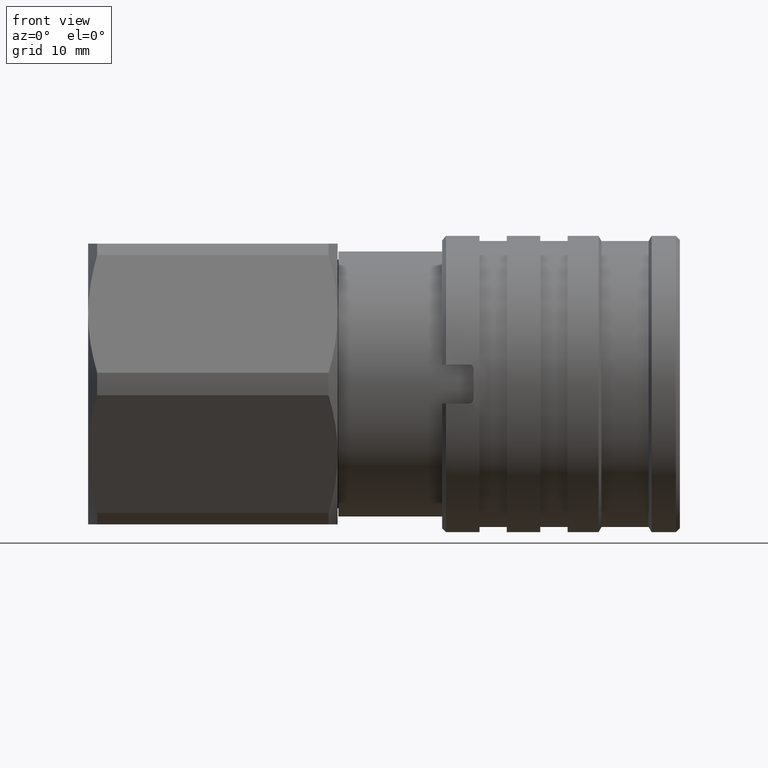
[diagram: clean part render]
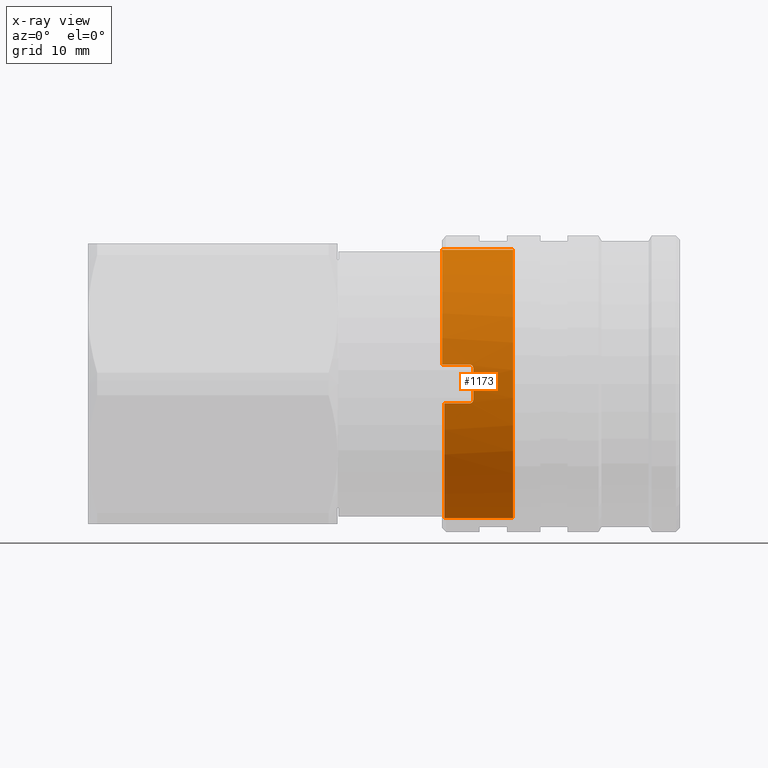
[diagram: x-ray — body ghosted, one internal face saturated and labeled with its STEP entity id]
A machine part, front view, then the same camera in x-ray: the body is ghosted and one INTERNAL B-rep face — a face not visible from any outside direction — is saturated and labeled: STEP entity #1173.
In plain terms, the highlighted cylindrical surface (partial cylindrical patch) has radius 17.2 mm, axis along (-1, -0, -0).
Its self-contained STEP definition (entity closure, byte-faithful):
#20 = CARTESIAN_POINT ( 'NONE',  ( 22.80000000000000100, -17.01734409360050600, -2.499999999999995600 ) ) ;
#53 = DIRECTION ( 'NONE',  ( -1.000000000000000000, -0.0000000000000000000, -0.0000000000000000000 ) ) ;
#188 = EDGE_LOOP ( 'NONE', ( #3934, #3924, #3922, #3920, #3957, #3958, #3959, #3970, #3971, #229 ) ) ;
#229 = ORIENTED_EDGE ( 'NONE', *, *, #948, .F. ) ;
#267 = FACE_OUTER_BOUND ( 'NONE', #188, .T. ) ;
#268 = CYLINDRICAL_SURFACE ( 'NONE', #1063, 17.19999999999999900 ) ;
#611 = CIRCLE ( 'NONE', #1948, 17.19999999999999900 ) ;
#624 = LINE ( 'NONE', #3706, #625 ) ;
#625 = VECTOR ( 'NONE', #3694, 1000.000000000000000 ) ;
#645 = LINE ( 'NONE', #20, #647 ) ;
#647 = VECTOR ( 'NONE', #53, 1000.000000000000000 ) ;
#684 = CIRCLE ( 'NONE', #4021, 17.19999999999999900 ) ;
#710 = LINE ( 'NONE', #4090, #712 ) ;
#712 = VECTOR ( 'NONE', #4089, 1000.000000000000000 ) ;
#821 = EDGE_CURVE ( 'NONE', #1664, #1632, #611, .T. ) ;
#829 = EDGE_CURVE ( 'NONE', #1688, #1664, #624, .T. ) ;
#849 = EDGE_CURVE ( 'NONE', #1821, #1632, #645, .T. ) ;
#876 = EDGE_CURVE ( 'NONE', #1737, #1688, #684, .T. ) ;
#901 = EDGE_CURVE ( 'NONE', #1921, #1834, #710, .T. ) ;
#916 = EDGE_CURVE ( 'NONE', #1834, #1635, #2154, .T. ) ;
#920 = EDGE_CURVE ( 'NONE', #1821, #1687, #2431, .T. ) ;
#948 = EDGE_CURVE ( 'NONE', #1737, #1635, #2186, .T. ) ;
#964 = EDGE_CURVE ( 'NONE', #1751, #1687, #2209, .T. ) ;
#973 = EDGE_CURVE ( 'NONE', #1751, #1921, #2502, .T. ) ;
#1010 = AXIS2_PLACEMENT_3D ( 'NONE', #1211, #1210, #1209 ) ;
#1063 = AXIS2_PLACEMENT_3D ( 'NONE', #2881, #2882, #2883 ) ;
#1173 = ADVANCED_FACE ( 'NONE', ( #267 ), #268, .F. ) ;
#1209 = DIRECTION ( 'NONE',  ( 0.0000000000000000000, 0.0000000000000000000, -1.000000000000000000 ) ) ;
#1210 = DIRECTION ( 'NONE',  ( 1.000000000000000000, 0.0000000000000000000, 0.0000000000000000000 ) ) ;
#1211 = CARTESIAN_POINT ( 'NONE',  ( 26.80000000000000100, 0.0000000000000000000, 0.0000000000000000000 ) ) ;
#1632 = VERTEX_POINT ( 'NONE', #2961 ) ;
#1635 = VERTEX_POINT ( 'NONE', #2963 ) ;
#1664 = VERTEX_POINT ( 'NONE', #2979 ) ;
#1687 = VERTEX_POINT ( 'NONE', #2992 ) ;
#1688 = VERTEX_POINT ( 'NONE', #2993 ) ;
#1737 = VERTEX_POINT ( 'NONE', #3025 ) ;
#1751 = VERTEX_POINT ( 'NONE', #3038 ) ;
#1821 = VERTEX_POINT ( 'NONE', #3081 ) ;
#1834 = VERTEX_POINT ( 'NONE', #3090 ) ;
#1921 = VERTEX_POINT ( 'NONE', #3135 ) ;
#1948 = AXIS2_PLACEMENT_3D ( 'NONE', #3690, #3688, #3656 ) ;
#2154 = CIRCLE ( 'NONE', #3915, 17.19999999999999900 ) ;
#2186 = LINE ( 'NONE', #3736, #2188 ) ;
#2188 = VECTOR ( 'NONE', #3734, 1000.000000000000000 ) ;
#2209 = CIRCLE ( 'NONE', #1010, 17.19999999999999900 ) ;
#2431 = B_SPLINE_CURVE_WITH_KNOTS ( 'NONE', 3,
 ( #3493, #3487, #3465, #3469, #3467, #3466 ),
 .UNSPECIFIED., .F., .F.,
 ( 4, 2, 4 ),
 ( 0.0000000000000000000, 0.0003921816289859521000, 0.0007843632579719042000 ),
 .UNSPECIFIED. ) ;
#2502 = B_SPLINE_CURVE_WITH_KNOTS ( 'NONE', 3,
 ( #2660, #2661, #2662, #2663, #2664, #2665 ),
 .UNSPECIFIED., .F., .F.,
 ( 4, 2, 4 ),
 ( 0.0000000000000000000, 0.0003921826131485966000, 0.0007843652262971932000 ),
 .UNSPECIFIED. ) ;
#2660 = CARTESIAN_POINT ( 'NONE',  ( 26.80000000000000100, -17.08332520325009800, 1.999999999999995800 ) ) ;
#2661 = CARTESIAN_POINT ( 'NONE',  ( 26.79999999999999700, -17.06790551899001300, 2.131709740373209300 ) ) ;
#2662 = CARTESIAN_POINT ( 'NONE',  ( 26.74631972666713200, -17.05108197392325700, 2.260376652877110100 ) ) ;
#2663 = CARTESIAN_POINT ( 'NONE',  ( 26.56235259974453200, -17.02556566590858000, 2.445161109243594300 ) ) ;
#2664 = CARTESIAN_POINT ( 'NONE',  ( 26.43263903549400600, -17.01734409360051000, 2.499999999999995600 ) ) ;
#2665 = CARTESIAN_POINT ( 'NONE',  ( 26.30000000000000100, -17.01734409360050600, 2.499999999999995600 ) ) ;
#2881 = CARTESIAN_POINT ( 'NONE',  ( 22.80000000000000100, 0.0000000000000000000, 0.0000000000000000000 ) ) ;
#2882 = DIRECTION ( 'NONE',  ( -1.000000000000000000, -0.0000000000000000000, -0.0000000000000000000 ) ) ;
#2883 = DIRECTION ( 'NONE',  ( 0.0000000000000000000, 0.0000000000000000000, 1.000000000000000000 ) ) ;
#2961 = CARTESIAN_POINT ( 'NONE',  ( 23.10000000000000100, -17.01734409360050600, -2.499999999999995600 ) ) ;
#2963 = CARTESIAN_POINT ( 'NONE',  ( 22.80000000000000100, 0.0000000000000000000, 17.19999999999999900 ) ) ;
#2979 = CARTESIAN_POINT ( 'NONE',  ( 23.10000000000000100, 2.106392494533447400E-015, -17.19999999999999900 ) ) ;
#2992 = CARTESIAN_POINT ( 'NONE',  ( 26.80000000000000100, -17.08332520325009800, -1.999999999999995800 ) ) ;
#2993 = CARTESIAN_POINT ( 'NONE',  ( 31.91671502080687600, 2.106392494533447400E-015, -17.19999999999999900 ) ) ;
#3025 = CARTESIAN_POINT ( 'NONE',  ( 31.91671502080687600, 0.0000000000000000000, 17.19999999999999900 ) ) ;
#3038 = CARTESIAN_POINT ( 'NONE',  ( 26.80000000000000100, -17.08332520325009800, 1.999999999999995800 ) ) ;
#3081 = CARTESIAN_POINT ( 'NONE',  ( 26.30000000000000100, -17.01734409360050600, -2.499999999999995600 ) ) ;
#3090 = CARTESIAN_POINT ( 'NONE',  ( 22.80000000000000100, -17.01734409360051000, 2.499999999999995600 ) ) ;
#3135 = CARTESIAN_POINT ( 'NONE',  ( 26.30000000000000100, -17.01734409360050600, 2.499999999999995600 ) ) ;
#3465 = CARTESIAN_POINT ( 'NONE',  ( 26.56210366188270200, -17.02554756240645200, -2.445282336775208800 ) ) ;
#3466 = CARTESIAN_POINT ( 'NONE',  ( 26.80000000000000100, -17.08332520325009800, -1.999999999999995800 ) ) ;
#3467 = CARTESIAN_POINT ( 'NONE',  ( 26.80000000000000400, -17.06790801662183600, -2.131688406444876400 ) ) ;
#3469 = CARTESIAN_POINT ( 'NONE',  ( 26.74607698487314900, -17.05103192512699200, -2.260748945506582300 ) ) ;
#3481 = CARTESIAN_POINT ( 'NONE',  ( 22.80000000000000100, 0.0000000000000000000, 0.0000000000000000000 ) ) ;
#3485 = DIRECTION ( 'NONE',  ( 0.0000000000000000000, 0.0000000000000000000, 1.000000000000000000 ) ) ;
#3486 = DIRECTION ( 'NONE',  ( -1.000000000000000000, -0.0000000000000000000, -0.0000000000000000000 ) ) ;
#3487 = CARTESIAN_POINT ( 'NONE',  ( 26.43261894833201700, -17.01734409360051000, -2.499999999999996000 ) ) ;
#3493 = CARTESIAN_POINT ( 'NONE',  ( 26.30000000000000100, -17.01734409360050600, -2.499999999999995600 ) ) ;
#3656 = DIRECTION ( 'NONE',  ( 0.0000000000000000000, 0.0000000000000000000, 1.000000000000000000 ) ) ;
#3688 = DIRECTION ( 'NONE',  ( -1.000000000000000000, -0.0000000000000000000, -0.0000000000000000000 ) ) ;
#3690 = CARTESIAN_POINT ( 'NONE',  ( 23.10000000000000100, 0.0000000000000000000, 0.0000000000000000000 ) ) ;
#3694 = DIRECTION ( 'NONE',  ( -1.000000000000000000, -0.0000000000000000000, -0.0000000000000000000 ) ) ;
#3706 = CARTESIAN_POINT ( 'NONE',  ( 22.80000000000000100, 2.106392494533447400E-015, -17.19999999999999900 ) ) ;
#3734 = DIRECTION ( 'NONE',  ( -1.000000000000000000, -0.0000000000000000000, -0.0000000000000000000 ) ) ;
#3736 = CARTESIAN_POINT ( 'NONE',  ( 22.80000000000000100, 0.0000000000000000000, 17.19999999999999900 ) ) ;
#3865 = DIRECTION ( 'NONE',  ( 1.000000000000000000, -1.172548684605769100E-016, 0.0000000000000000000 ) ) ;
#3889 = CARTESIAN_POINT ( 'NONE',  ( 31.91671502080687600, 0.0000000000000000000, 0.0000000000000000000 ) ) ;
#3901 = DIRECTION ( 'NONE',  ( 0.0000000000000000000, 1.000000000000000000, 0.0000000000000000000 ) ) ;
#3915 = AXIS2_PLACEMENT_3D ( 'NONE', #3481, #3486, #3485 ) ;
#3920 = ORIENTED_EDGE ( 'NONE', *, *, #849, .F. ) ;
#3922 = ORIENTED_EDGE ( 'NONE', *, *, #821, .T. ) ;
#3924 = ORIENTED_EDGE ( 'NONE', *, *, #829, .T. ) ;
#3934 = ORIENTED_EDGE ( 'NONE', *, *, #876, .T. ) ;
#3957 = ORIENTED_EDGE ( 'NONE', *, *, #920, .T. ) ;
#3958 = ORIENTED_EDGE ( 'NONE', *, *, #964, .F. ) ;
#3959 = ORIENTED_EDGE ( 'NONE', *, *, #973, .T. ) ;
#3970 = ORIENTED_EDGE ( 'NONE', *, *, #901, .T. ) ;
#3971 = ORIENTED_EDGE ( 'NONE', *, *, #916, .T. ) ;
#4021 = AXIS2_PLACEMENT_3D ( 'NONE', #3889, #3865, #3901 ) ;
#4089 = DIRECTION ( 'NONE',  ( -1.000000000000000000, -0.0000000000000000000, -0.0000000000000000000 ) ) ;
#4090 = CARTESIAN_POINT ( 'NONE',  ( 22.80000000000000100, -17.01734409360050600, 2.499999999999995600 ) ) ;